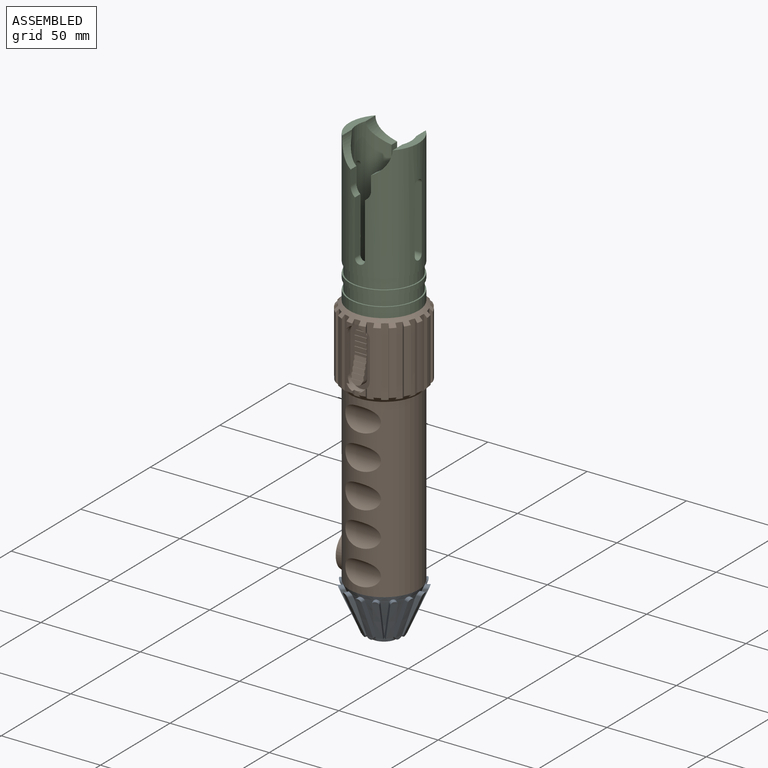
[diagram: assembled view]
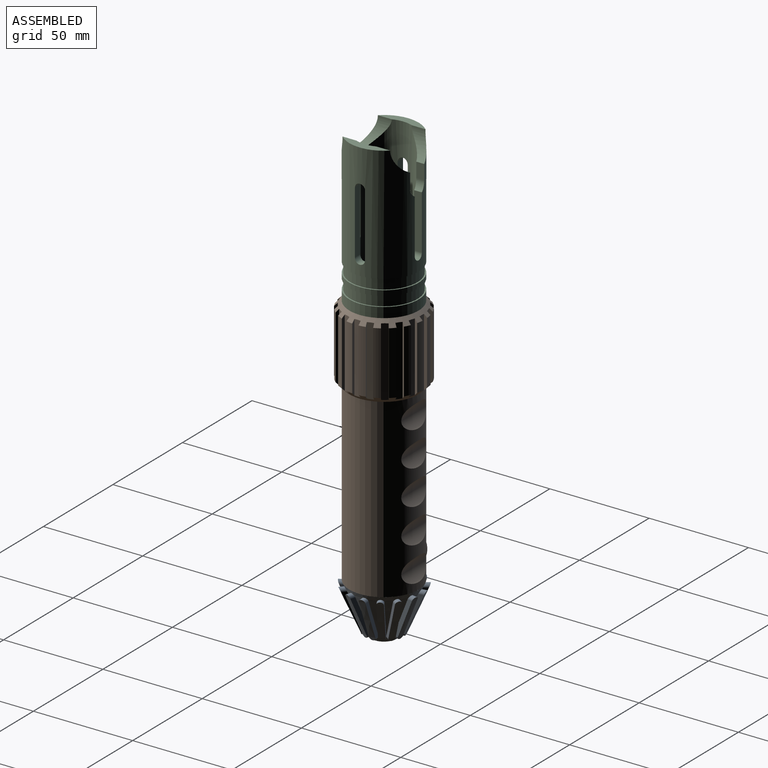
[diagram: assembled view, second angle]
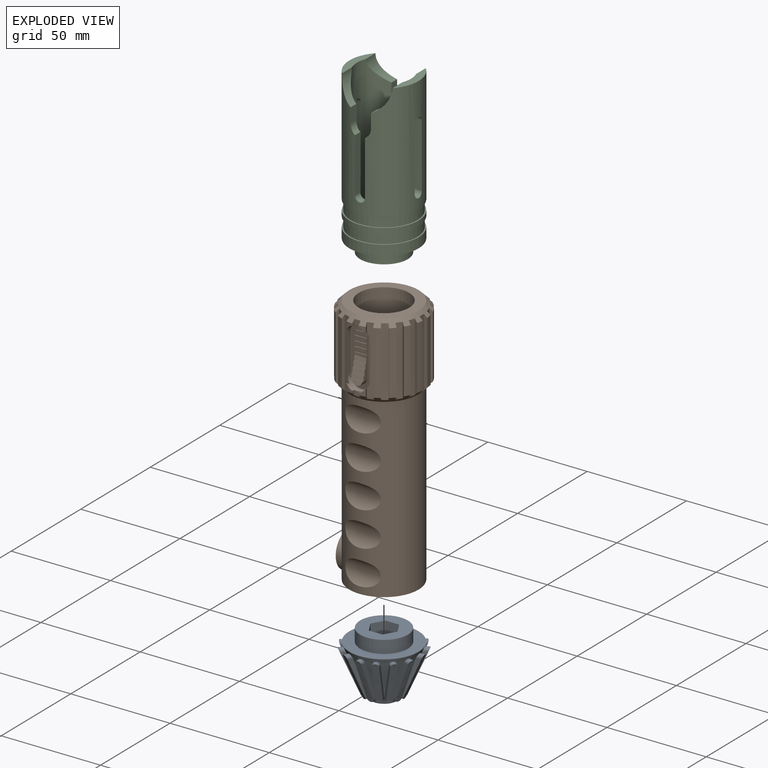
[diagram: exploded view]
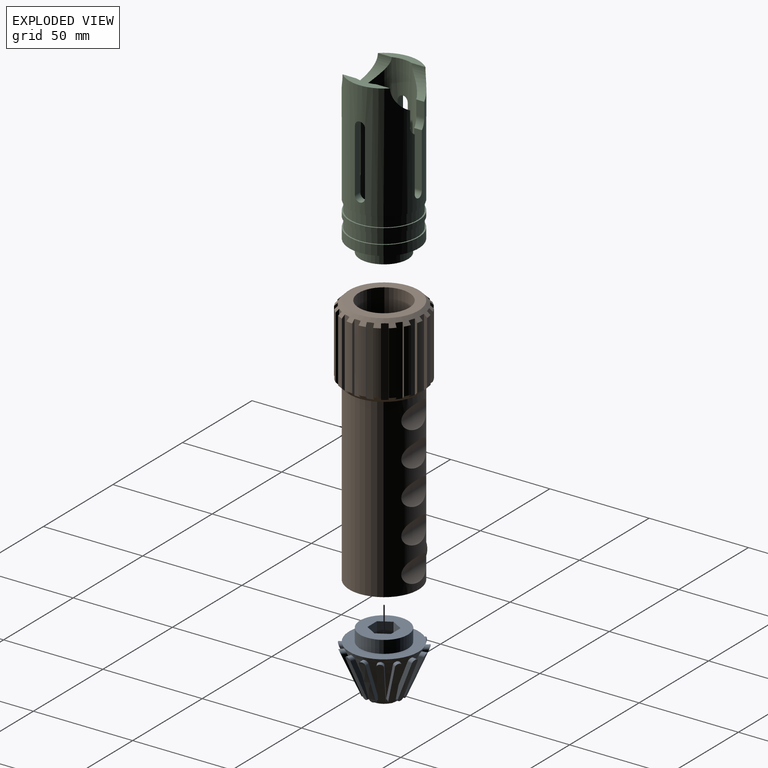
[diagram: exploded view, second angle]
ASSEMBLY  parts=3 mates=4
PART A: 87 faces, bbox 39.2x39x32.2 mm
  f0: plane 19.5x10.48mm, normal (-0.91,0.41,0), area 48.8mm2, adj f1,f3,f61,f79
  f1: cylinder r=1.59mm len=4.17mm, axis (0.41,0.91,0), area 12.8mm2, adj f0,f2,f61,f79
  f2: plane 19.5x10.48mm, normal (0.91,-0.41,0), area 48.8mm2, adj f1,f3,f61,f79
  f3: cylinder r=1.59mm len=4.32mm, axis (0.41,0.91,0), area 12.7mm2, adj f0,f2,f61,f79
  f4: plane 19.5x8.61mm, normal (-0.67,0.74,0), area 48.8mm2, adj f5,f7,f61,f78
  f5: cylinder r=1.59mm len=4.44mm, axis (0.74,0.67,0), area 12.8mm2, adj f4,f6,f61,f78
  f6: plane 19.5x8.61mm, normal (0.67,-0.74,0), area 48.8mm2, adj f5,f7,f61,f78
  f7: cylinder r=1.59mm len=4.59mm, axis (0.74,0.67,0), area 12.7mm2, adj f4,f6,f61,f78
  f8: plane 19.5x10.89mm, normal (-0.31,0.95,0), area 48.8mm2, adj f9,f11,f61,f77
  f9: cylinder r=1.59mm len=3.98mm, axis (0.95,0.31,0), area 12.8mm2, adj f8,f10,f61,f77
  f10: plane 19.5x10.89mm, normal (0.31,-0.95,0), area 48.8mm2, adj f9,f11,f61,f77
  f11: cylinder r=1.59mm len=4.13mm, axis (0.95,0.31,0), area 12.7mm2, adj f8,f10,f61,f77
  f12: plane 19.5x11.36mm, normal (0.1,0.99,0), area 48.8mm2, adj f13,f15,f61,f76
  f13: cylinder r=1.59mm len=3.48mm, axis (0.99,-0.1,0), area 12.2mm2, adj f12,f14,f61,f76
  f14: plane 19.43x11.29mm, normal (-0.1,-0.99,0), area 48.8mm2, adj f13,f15,f61,f76
  f15: cylinder r=1.59mm len=3.63mm, axis (0.99,-0.1,0), area 12.7mm2, adj f12,f14,f61,f76
  f16: plane 19.5x9.95mm, normal (0.5,0.87,0), area 48.8mm2, adj f17,f19,f61,f75
  f17: cylinder r=1.59mm len=4.31mm, axis (0.87,-0.5,0), area 12.8mm2, adj f16,f18,f61,f75
  f18: plane 19.5x9.95mm, normal (-0.5,-0.87,0), area 48.8mm2, adj f17,f19,f61,f75
  f19: cylinder r=1.59mm len=4.46mm, axis (0.87,-0.5,0), area 12.7mm2, adj f16,f18,f61,f75
  f20: plane 19.5x9.33mm, normal (0.81,0.59,0), area 48.8mm2, adj f21,f23,f61,f74
  f21: cylinder r=1.59mm len=4.4mm, axis (0.59,-0.81,0), area 12.8mm2, adj f20,f22,f61,f74
  f22: plane 19.5x9.33mm, normal (-0.81,-0.59,0), area 48.8mm2, adj f21,f23,f61,f74
  f23: cylinder r=1.59mm len=4.55mm, axis (0.59,-0.81,0), area 12.7mm2, adj f20,f22,f61,f74
  f24: plane 19.5x11.18mm, normal (0.98,0.21,0), area 48.8mm2, adj f25,f27,f61,f73
  f25: cylinder r=1.59mm len=3.75mm, axis (0.21,-0.98,0), area 12.8mm2, adj f24,f26,f61,f73
  f26: plane 19.5x11.18mm, normal (-0.98,-0.21,0), area 48.8mm2, adj f25,f27,f61,f73
  f27: cylinder r=1.59mm len=3.9mm, axis (0.21,-0.98,0), area 12.7mm2, adj f24,f26,f61,f73
  f28: plane 19.5x11.18mm, normal (0.98,-0.21,0), area 48.8mm2, adj f29,f31,f61,f72
  f29: cylinder r=1.59mm len=3.75mm, axis (-0.21,-0.98,0), area 12.8mm2, adj f28,f30,f61,f72
  f30: plane 19.5x11.18mm, normal (-0.98,0.21,0), area 48.8mm2, adj f29,f31,f61,f72
  f31: cylinder r=1.59mm len=3.9mm, axis (-0.21,-0.98,0), area 12.7mm2, adj f28,f30,f61,f72
  f32: plane 19.5x9.33mm, normal (0.81,-0.59,0), area 48.8mm2, adj f33,f35,f61,f71
  f33: cylinder r=1.59mm len=4.4mm, axis (-0.59,-0.81,0), area 12.8mm2, adj f32,f34,f61,f71
  f34: plane 19.5x9.33mm, normal (-0.81,0.59,0), area 48.8mm2, adj f33,f35,f61,f71
  f35: cylinder r=1.59mm len=4.55mm, axis (-0.59,-0.81,0), area 12.7mm2, adj f32,f34,f61,f71
  f36: plane 19.5x9.95mm, normal (0.5,-0.87,0), area 48.8mm2, adj f37,f39,f61,f70
  f37: cylinder r=1.59mm len=4.31mm, axis (-0.87,-0.5,0), area 12.8mm2, adj f36,f38,f61,f70
  f38: plane 19.5x9.95mm, normal (-0.5,0.87,0), area 48.8mm2, adj f37,f39,f61,f70
  f39: cylinder r=1.59mm len=4.46mm, axis (-0.87,-0.5,0), area 12.7mm2, adj f36,f38,f61,f70
  f40: plane 19.5x11.36mm, normal (0.1,-0.99,0), area 48.8mm2, adj f41,f43,f61,f69
  f41: cylinder r=1.59mm len=3.48mm, axis (-0.99,-0.1,0), area 12.8mm2, adj f40,f42,f61,f69
  f42: plane 19.5x11.36mm, normal (-0.1,0.99,0), area 48.8mm2, adj f41,f43,f61,f69
  f43: cylinder r=1.59mm len=3.63mm, axis (-0.99,-0.1,0), area 12.7mm2, adj f40,f42,f61,f69
  f44: plane 19.5x10.89mm, normal (-0.31,-0.95,0), area 48.8mm2, adj f45,f47,f61,f68
  f45: cylinder r=1.59mm len=3.98mm, axis (-0.95,0.31,0), area 12.8mm2, adj f44,f46,f61,f68
  f46: plane 19.5x10.89mm, normal (0.31,0.95,0), area 48.8mm2, adj f45,f47,f61,f68
  f47: cylinder r=1.59mm len=4.13mm, axis (-0.95,0.31,0), area 12.7mm2, adj f44,f46,f61,f68
  f48: plane 19.5x8.61mm, normal (-0.67,-0.74,0), area 48.8mm2, adj f49,f51,f61,f67
  f49: cylinder r=1.59mm len=4.44mm, axis (-0.74,0.67,0), area 12.8mm2, adj f48,f50,f61,f67
  f50: plane 19.5x8.61mm, normal (0.67,0.74,0), area 48.8mm2, adj f49,f51,f61,f67
  f51: cylinder r=1.59mm len=4.59mm, axis (-0.74,0.67,0), area 12.7mm2, adj f48,f50,f61,f67
  f52: plane 19.5x10.48mm, normal (-0.91,-0.41,0), area 48.8mm2, adj f53,f55,f61,f66
  f53: cylinder r=1.59mm len=4.17mm, axis (-0.41,0.91,0), area 12.8mm2, adj f52,f54,f61,f66
  f54: plane 19.5x10.48mm, normal (0.91,0.41,0), area 48.8mm2, adj f53,f55,f61,f66
  f55: cylinder r=1.59mm len=4.32mm, axis (-0.41,0.91,0), area 12.7mm2, adj f52,f54,f61,f66
  f56: plane 19.5x11.42mm, normal (-1,0,0), area 48.8mm2, adj f57,f59,f61,f65
  f57: cylinder r=1.59mm len=3.18mm, axis (0,1,0), area 12.8mm2, adj f56,f58,f61,f65
  f58: plane 19.5x11.42mm, normal (1,0,0), area 48.8mm2, adj f57,f59,f61,f65
  f59: cylinder r=1.59mm len=3.31mm, axis (0,1,0), area 12.7mm2, adj f56,f58,f61,f65
  f60: plane 12.7x12.7mm, normal (0,0,-1), area 126.7mm2, adj f61
  f61: cone r=17.46mm half-angle=23.6deg, axis (0,0,1), area 857mm2, adj f0,f1,f2,f3,f4,f5,f6,f7
  f62: plane 34.93x34.93mm, normal (0,0,1), area 500.7mm2, adj f61,f63
  f63: cylinder r=12.06mm len=24.13mm, axis (0,0,-1), area 481.4mm2, adj f62,f64
  f64: plane 24.13x24.13mm, normal (0,0,1), area 334.5mm2, adj f63,f80,f81,f82,f83,f84,f85
  f65: cone r=20mm half-angle=23.6deg, axis (0,0,1), area 78.9mm2, adj f56,f57,f58,f59
  f66: cone r=20mm half-angle=23.6deg, axis (0,0,1), area 78.9mm2, adj f52,f53,f54,f55
  f67: cone r=20mm half-angle=23.6deg, axis (0,0,1), area 78.9mm2, adj f48,f49,f50,f51
  f68: cone r=20mm half-angle=23.6deg, axis (0,0,1), area 78.9mm2, adj f44,f45,f46,f47
  f69: cone r=20mm half-angle=23.6deg, axis (0,0,1), area 78.9mm2, adj f40,f41,f42,f43
  f70: cone r=20mm half-angle=23.6deg, axis (0,0,1), area 78.9mm2, adj f36,f37,f38,f39
  f71: cone r=20mm half-angle=23.6deg, axis (0,0,1), area 78.9mm2, adj f32,f33,f34,f35
  f72: cone r=20mm half-angle=23.6deg, axis (0,0,1), area 78.9mm2, adj f28,f29,f30,f31
  f73: cone r=20mm half-angle=23.6deg, axis (0,0,1), area 78.9mm2, adj f24,f25,f26,f27
  f74: cone r=20mm half-angle=23.6deg, axis (0,0,1), area 78.9mm2, adj f20,f21,f22,f23
  f75: cone r=20mm half-angle=23.6deg, axis (0,0,1), area 78.9mm2, adj f16,f17,f18,f19
  f76: cone r=20mm half-angle=23.6deg, axis (0,0,1), area 78.9mm2, adj f12,f13,f14,f15
  f77: cone r=20mm half-angle=23.6deg, axis (0,0,1), area 78.9mm2, adj f8,f9,f10,f11
  f78: cone r=20mm half-angle=23.6deg, axis (0,0,1), area 78.9mm2, adj f4,f5,f6,f7
  f79: cone r=20mm half-angle=23.6deg, axis (0,0,1), area 78.9mm2, adj f0,f1,f2,f3
  f80: plane 6.35x5.95mm, normal (-0.87,-0.5,0), area 43.7mm2, adj f64,f81,f85,f86
  f81: plane 6.87x6.35mm, normal (0,-1,0), area 43.7mm2, adj f64,f80,f82,f86
  f82: plane 6.35x5.95mm, normal (0.87,-0.5,0), area 43.7mm2, adj f64,f81,f83,f86
  f83: plane 6.35x5.95mm, normal (0.87,0.5,0), area 43.7mm2, adj f64,f82,f84,f86
  f84: plane 6.87x6.35mm, normal (0,1,0), area 43.7mm2, adj f64,f83,f85,f86
  f85: plane 6.35x5.95mm, normal (-0.87,0.5,0), area 43.7mm2, adj f64,f80,f84,f86
  f86: plane 13.75x11.91mm, normal (0,0,1), area 122.8mm2, adj f80,f81,f82,f83,f84,f85
PART B: 172 faces, bbox 41.5x41.5x127.2 mm
  f0: cylinder r=3.97mm len=88.9mm, axis (0,0,-1), area 2216.8mm2, adj f154,f163
  f1: cylinder r=17.46mm len=88.9mm, axis (0,0,-1), area 7662.9mm2, adj f44,f46,f141,f142,f143,f144,f145,f146
  f2: plane 19.05x2.94mm, normal (-1,0,0), area 20.6mm2, adj f3,f4,f5,f6,f7,f9,f10,f11
  f3: torus R=9.53mm, axis (1,0,0), area 25.7mm2, adj f2,f8,f111,f112,f127,f128,f129,f131
  f4: plane 6.03x1.23mm, normal (0,-0.97,0.26), area 7.7mm2, adj f2,f9,f112,f138
  f5: plane 6.03x1.23mm, normal (0,-0.97,0.26), area 7.7mm2, adj f2,f112,f135,f139
  f6: plane 6.03x1.23mm, normal (0,-0.97,0.26), area 7.7mm2, adj f2,f112,f132,f136
  f7: plane 6.03x1.23mm, normal (0,-0.97,0.26), area 7.7mm2, adj f2,f112,f130,f133
  f8: plane 5.9x1.23mm, normal (0,-0.97,0.26), area 6.9mm2, adj f3,f127,f129
  f9: plane 6.03x1.27mm, normal (0,-1,0), area 7.7mm2, adj f2,f4,f112,f124
  f10: cylinder r=3.02mm len=6.03mm, axis (0,1,0), area 3.5mm2, adj f2,f14,f15,f112,f113,f114,f115,f116
  f11: plane 6.03x1.27mm, normal (0,-1,0), area 7.7mm2, adj f2,f112,f121,f125
  f12: plane 6.03x1.27mm, normal (0,-1,0), area 7.7mm2, adj f2,f112,f118,f122
  f13: plane 6.03x1.27mm, normal (0,-1,0), area 7.7mm2, adj f2,f112,f117,f119
  f14: plane 5.9x1.27mm, normal (0,-1,0), area 6.9mm2, adj f10,f114,f116
  f15: plane 30.16x11.11mm, normal (0,-1,0), area 165.2mm2, adj f2,f10,f107,f108,f109,f110,f111,f112
  f16: cylinder r=20.64mm len=3.64mm, axis (0,0,-1), area 6.6mm2, adj f22,f45,f105,f110
  f17: cylinder r=20.64mm len=3.64mm, axis (0,0,-1), area 6.6mm2, adj f21,f45,f101,f110
  f18: plane 35.11x3.21mm, normal (0.31,-0.95,0), area 81.3mm2, adj f19,f45,f46,f100,f101,f107,f109,f110
  f19: plane 5.24x1.54mm, normal (0.95,0.31,0), area 6.1mm2, adj f18,f26,f46,f109
  f20: plane 3.37x2.8mm, normal (0,-1,0), area 7.7mm2, adj f46,f103,f104,f109
  f21: plane 2.55x1.53mm, normal (-1,0,0), area 2.7mm2, adj f17,f45,f102,f110
  f22: plane 2.55x1.53mm, normal (1,0,0), area 2.7mm2, adj f16,f45,f102,f110
  f23: plane 35.11x3.21mm, normal (-0.31,-0.95,0), area 81.3mm2, adj f24,f45,f46,f105,f106,f108,f109,f110
  f24: plane 5.24x1.54mm, normal (-0.95,0.31,0), area 6.1mm2, adj f23,f25,f46,f109
  f25: cylinder r=20.64mm len=3.64mm, axis (0,0,-1), area 6.6mm2, adj f24,f46,f104,f109
  f26: cylinder r=20.64mm len=3.64mm, axis (0,0,-1), area 6.6mm2, adj f19,f46,f103,f109
  f27: cylinder r=20.64mm len=31.75mm, axis (0,0,-1), area 104.9mm2, adj f45,f46,f99,f100
  f28: cylinder r=20.64mm len=31.75mm, axis (0,0,-1), area 104.9mm2, adj f45,f46,f96,f98
  f29: cylinder r=20.64mm len=31.75mm, axis (0,0,-1), area 104.9mm2, adj f45,f46,f93,f95
  f30: cylinder r=20.64mm len=31.75mm, axis (0,0,-1), area 104.9mm2, adj f45,f46,f90,f92
  f31: cylinder r=20.64mm len=31.75mm, axis (0,0,-1), area 104.9mm2, adj f45,f46,f87,f89
  f32: cylinder r=20.64mm len=31.75mm, axis (0,0,-1), area 104.9mm2, adj f45,f46,f57,f86
  f33: cylinder r=20.64mm len=31.75mm, axis (0,0,-1), area 104.9mm2, adj f45,f46,f81,f83
  f34: cylinder r=20.64mm len=31.75mm, axis (0,0,-1), area 104.9mm2, adj f45,f46,f80,f106
  f35: cylinder r=20.64mm len=31.75mm, axis (0,0,-1), area 104.9mm2, adj f45,f46,f77,f84
  f36: cylinder r=20.64mm len=31.75mm, axis (0,0,-1), area 104.9mm2, adj f45,f46,f74,f78
  f37: cylinder r=20.64mm len=31.75mm, axis (0,0,-1), area 104.9mm2, adj f45,f46,f69,f71
  f38: cylinder r=20.64mm len=31.75mm, axis (0,0,-1), area 104.9mm2, adj f45,f46,f66,f68
  f39: cylinder r=20.64mm len=31.75mm, axis (0,0,-1), area 104.9mm2, adj f45,f46,f63,f65
  f40: cylinder r=20.64mm len=31.75mm, axis (0,0,-1), area 104.9mm2, adj f45,f46,f62,f75
  f41: cylinder r=20.64mm len=31.75mm, axis (0,0,-1), area 104.9mm2, adj f45,f46,f54,f59
  f42: cylinder r=20.64mm len=31.75mm, axis (0,0,-1), area 104.9mm2, adj f45,f46,f56,f60
  f43: cylinder r=20.64mm len=31.75mm, axis (0,0,-1), area 104.9mm2, adj f45,f46,f50,f53
  f44: plane 34.93x34.93mm, normal (0,0,-1), area 451.3mm2, adj f1,f153
  f45: cone r=17.46mm half-angle=45deg, axis (0,0,-1), area 400.4mm2, adj f16,f17,f18,f21,f22,f23,f27,f28
  f46: cone r=20.64mm half-angle=45deg, axis (0,0,1), area 400.4mm2, adj f1,f18,f19,f20,f23,f24,f25,f26
  f47: cylinder r=20.64mm len=31.75mm, axis (0,0,-1), area 104.9mm2, adj f45,f46,f51,f72
  f48: plane 34.93x34.93mm, normal (0,0,1), area 451.3mm2, adj f45,f164
  f49: plane 35.12x3.38mm, normal (0,1,0), area 110.7mm2, adj f45,f46,f50,f51
  f50: plane 34.8x1.53mm, normal (-1,0,0), area 50.8mm2, adj f43,f45,f46,f49
  f51: plane 34.8x1.53mm, normal (1,0,0), area 50.8mm2, adj f45,f46,f47,f49
  f52: plane 35.11x3.21mm, normal (0.31,0.95,0), area 110.7mm2, adj f45,f46,f53,f54
  f53: plane 34.8x1.46mm, normal (0.95,-0.31,0), area 50.8mm2, adj f43,f45,f46,f52
  f54: plane 34.8x1.46mm, normal (-0.95,0.31,0), area 50.8mm2, adj f41,f45,f46,f52
  f55: plane 35.11x2.76mm, normal (0.81,0.59,0), area 110.7mm2, adj f45,f46,f56,f57
  f56: plane 34.8x1.24mm, normal (0.59,-0.81,0), area 50.8mm2, adj f42,f45,f46,f55
  f57: plane 34.8x1.24mm, normal (-0.59,0.81,0), area 50.8mm2, adj f32,f45,f46,f55
  f58: plane 35.11x2.76mm, normal (0.59,0.81,0), area 110.7mm2, adj f45,f46,f59,f60
  f59: plane 34.8x1.24mm, normal (0.81,-0.59,0), area 50.8mm2, adj f41,f45,f46,f58
  f60: plane 34.8x1.24mm, normal (-0.81,0.59,0), area 50.8mm2, adj f42,f45,f46,f58
  f61: plane 35.11x3.21mm, normal (-0.95,0.31,0), area 110.7mm2, adj f45,f46,f62,f63
  f62: plane 34.8x1.46mm, normal (0.31,0.95,0), area 50.8mm2, adj f40,f45,f46,f61
  f63: plane 34.8x1.46mm, normal (-0.31,-0.95,0), area 50.8mm2, adj f39,f45,f46,f61
  f64: plane 35.11x2.76mm, normal (-0.81,0.59,0), area 110.7mm2, adj f45,f46,f65,f66
  f65: plane 34.8x1.24mm, normal (0.59,0.81,0), area 50.8mm2, adj f39,f45,f46,f64
  f66: plane 34.8x1.24mm, normal (-0.59,-0.81,0), area 50.8mm2, adj f38,f45,f46,f64
  f67: plane 35.11x2.76mm, normal (-0.59,0.81,0), area 110.7mm2, adj f45,f46,f68,f69
  f68: plane 34.8x1.24mm, normal (0.81,0.59,0), area 50.8mm2, adj f38,f45,f46,f67
  f69: plane 34.8x1.24mm, normal (-0.81,-0.59,0), area 50.8mm2, adj f37,f45,f46,f67
  f70: plane 35.11x3.21mm, normal (-0.31,0.95,0), area 110.7mm2, adj f45,f46,f71,f72
  f71: plane 34.8x1.46mm, normal (0.95,0.31,0), area 50.8mm2, adj f37,f45,f46,f70
  f72: plane 34.8x1.46mm, normal (-0.95,-0.31,0), area 50.8mm2, adj f45,f46,f47,f70
  f73: plane 35.12x3.37mm, normal (-1,0,0), area 110.7mm2, adj f45,f46,f74,f75
  f74: plane 34.8x1.53mm, normal (0,1,0), area 50.8mm2, adj f36,f45,f46,f73
  f75: plane 34.8x1.53mm, normal (0,-1,0), area 50.8mm2, adj f40,f45,f46,f73
  f76: plane 35.11x3.21mm, normal (-0.95,-0.31,0), area 110.7mm2, adj f45,f46,f77,f78
  f77: plane 34.8x1.46mm, normal (-0.31,0.95,0), area 50.8mm2, adj f35,f45,f46,f76
  f78: plane 34.8x1.46mm, normal (0.31,-0.95,0), area 50.8mm2, adj f36,f45,f46,f76
  f79: plane 35.11x2.76mm, normal (-0.59,-0.81,0), area 110.7mm2, adj f45,f46,f80,f81
  f80: plane 34.8x1.24mm, normal (-0.81,0.59,0), area 50.8mm2, adj f34,f45,f46,f79
  f81: plane 34.8x1.24mm, normal (0.81,-0.59,0), area 50.8mm2, adj f33,f45,f46,f79
  f82: plane 35.11x2.76mm, normal (-0.81,-0.59,0), area 110.7mm2, adj f45,f46,f83,f84
  f83: plane 34.8x1.24mm, normal (-0.59,0.81,0), area 50.8mm2, adj f33,f45,f46,f82
  f84: plane 34.8x1.24mm, normal (0.59,-0.81,0), area 50.8mm2, adj f35,f45,f46,f82
  f85: plane 35.11x3.21mm, normal (0.95,0.31,0), area 110.7mm2, adj f45,f46,f86,f87
  f86: plane 34.8x1.46mm, normal (0.31,-0.95,0), area 50.8mm2, adj f32,f45,f46,f85
  f87: plane 34.8x1.46mm, normal (-0.31,0.95,0), area 50.8mm2, adj f31,f45,f46,f85
  f88: plane 35.12x3.38mm, normal (1,0,0), area 110.7mm2, adj f45,f46,f89,f90
  f89: plane 34.8x1.53mm, normal (0,-1,0), area 50.8mm2, adj f31,f45,f46,f88
  f90: plane 34.8x1.53mm, normal (0,1,0), area 50.8mm2, adj f30,f45,f46,f88
  f91: plane 35.11x3.21mm, normal (0.95,-0.31,0), area 110.7mm2, adj f45,f46,f92,f93
  f92: plane 34.8x1.46mm, normal (-0.31,-0.95,0), area 50.8mm2, adj f30,f45,f46,f91
  f93: plane 34.8x1.46mm, normal (0.31,0.95,0), area 50.8mm2, adj f29,f45,f46,f91
  f94: plane 35.11x2.76mm, normal (0.81,-0.59,0), area 110.7mm2, adj f45,f46,f95,f96
  f95: plane 34.8x1.24mm, normal (-0.59,-0.81,0), area 50.8mm2, adj f29,f45,f46,f94
  f96: plane 34.8x1.24mm, normal (0.59,0.81,0), area 50.8mm2, adj f28,f45,f46,f94
  f97: plane 35.11x2.76mm, normal (0.59,-0.81,0), area 110.7mm2, adj f45,f46,f98,f99
  f98: plane 34.8x1.24mm, normal (-0.81,-0.59,0), area 50.8mm2, adj f28,f45,f46,f97
  f99: plane 34.8x1.24mm, normal (0.81,0.59,0), area 50.8mm2, adj f27,f45,f46,f97
  f100: plane 34.8x1.46mm, normal (-0.95,-0.31,0), area 50.8mm2, adj f18,f27,f45,f46
  f101: plane 5.24x1.54mm, normal (0.95,0.31,0), area 6.1mm2, adj f17,f18,f45,f110
  f102: plane 3.38x2.81mm, normal (0,-1,0), area 7.7mm2, adj f21,f22,f45,f110
  f103: plane 2.55x1.53mm, normal (-1,0,0), area 2.7mm2, adj f20,f26,f46,f109
  f104: plane 2.55x1.53mm, normal (1,0,0), area 2.7mm2, adj f20,f25,f46,f109
  f105: plane 5.24x1.54mm, normal (-0.95,0.31,0), area 6.1mm2, adj f16,f23,f45,f110
  f106: plane 34.8x1.46mm, normal (0.95,-0.31,0), area 50.8mm2, adj f23,f34,f45,f46
  f107: plane 19.05x1.94mm, normal (-1,0,0), area 37mm2, adj f15,f18,f109,f110
  f108: plane 19.05x1.94mm, normal (1,0,0), area 37mm2, adj f15,f23,f109,f110
  f109: cylinder r=5.56mm len=11.11mm, axis (0,1,0), area 54mm2, adj f15,f18,f19,f20,f23,f24,f25,f26
  f110: cylinder r=5.56mm len=11.11mm, axis (0,1,0), area 54mm2, adj f15,f16,f17,f18,f21,f22,f23,f101
  f111: cylinder r=3.02mm len=6.03mm, axis (0,1,0), area 6mm2, adj f2,f3,f15,f112
  f112: plane 19.05x2.94mm, normal (1,0,0), area 20.6mm2, adj f3,f4,f5,f6,f7,f9,f10,f11
  f113: plane 4.68x1.11mm, normal (0,-1,0), area 3.6mm2, adj f10,f114
  f114: plane 4.68x0.38mm, normal (0,0,1), area 1.8mm2, adj f10,f14,f113
  f115: plane 6.03x1.27mm, normal (0,-1,0), area 7.6mm2, adj f2,f10,f112,f116,f117
  f116: plane 5.9x0.38mm, normal (0,0,-1), area 2.2mm2, adj f10,f14,f115
  f117: plane 6.03x0.38mm, normal (0,0,1), area 2.3mm2, adj f2,f13,f112,f115
  f118: plane 6.03x0.38mm, normal (0,0,1), area 2.3mm2, adj f2,f12,f112,f120
  f119: plane 6.03x0.38mm, normal (0,0,-1), area 2.3mm2, adj f2,f13,f112,f120
  f120: plane 6.03x1.27mm, normal (0,-1,0), area 7.7mm2, adj f2,f112,f118,f119
  f121: plane 6.03x0.38mm, normal (0,0,1), area 2.3mm2, adj f2,f11,f112,f123
  f122: plane 6.03x0.38mm, normal (0,0,-1), area 2.3mm2, adj f2,f12,f112,f123
  f123: plane 6.03x1.27mm, normal (0,-1,0), area 7.7mm2, adj f2,f112,f121,f122
  f124: plane 6.03x0.38mm, normal (0,0,1), area 2.3mm2, adj f2,f9,f112,f126
  f125: plane 6.03x0.38mm, normal (0,0,-1), area 2.3mm2, adj f2,f11,f112,f126
  f126: plane 6.03x1.27mm, normal (0,-1,0), area 7.7mm2, adj f2,f112,f124,f125
  f127: plane 4.68x0.37mm, normal (0,-0.26,-0.97), area 1.8mm2, adj f3,f8,f128
  f128: plane 4.74x1.14mm, normal (0,-0.97,0.26), area 3.6mm2, adj f3,f127
  f129: plane 5.9x0.37mm, normal (0,0.26,0.97), area 2.2mm2, adj f3,f8,f131
  f130: plane 6.03x0.37mm, normal (0,-0.26,-0.97), area 2.3mm2, adj f2,f7,f112,f131
  f131: plane 6.04x1.23mm, normal (0,-0.97,0.26), area 7.6mm2, adj f2,f3,f112,f129,f130
  f132: plane 6.03x0.37mm, normal (0,-0.26,-0.97), area 2.3mm2, adj f2,f6,f112,f134
  f133: plane 6.03x0.37mm, normal (0,0.26,0.97), area 2.3mm2, adj f2,f7,f112,f134
  f134: plane 6.03x1.23mm, normal (0,-0.97,0.26), area 7.7mm2, adj f2,f112,f132,f133
  f135: plane 6.03x0.37mm, normal (0,-0.26,-0.97), area 2.3mm2, adj f2,f5,f112,f137
  f136: plane 6.03x0.37mm, normal (0,0.26,0.97), area 2.3mm2, adj f2,f6,f112,f137
  f137: plane 6.03x1.23mm, normal (0,-0.97,0.26), area 7.7mm2, adj f2,f112,f135,f136
  f138: plane 6.03x0.37mm, normal (0,-0.26,-0.97), area 2.3mm2, adj f2,f4,f112,f140
  f139: plane 6.03x0.37mm, normal (0,0.26,0.97), area 2.3mm2, adj f2,f5,f112,f140
  f140: plane 6.03x1.23mm, normal (0,-0.97,0.26), area 7.7mm2, adj f2,f112,f138,f139
  f141: cylinder r=8.47mm len=17.94mm, axis (1,0,0), area 188mm2, adj f1
  f142: cylinder r=8.47mm len=17.94mm, axis (1,0,0), area 188mm2, adj f1
  f143: cylinder r=8.47mm len=17.94mm, axis (1,0,0), area 188mm2, adj f1
  f144: cylinder r=8.47mm len=17.94mm, axis (1,0,0), area 188mm2, adj f1
  f145: cylinder r=8.47mm len=17.94mm, axis (1,0,0), area 188mm2, adj f1
  f146: cylinder r=8.47mm len=17.94mm, axis (1,0,0), area 188mm2, adj f1
  f147: cylinder r=8.47mm len=17.94mm, axis (1,0,0), area 188mm2, adj f1
  f148: cylinder r=8.47mm len=17.94mm, axis (1,0,0), area 188mm2, adj f1
  f149: cylinder r=8.47mm len=17.94mm, axis (1,0,0), area 188mm2, adj f1
  f150: cylinder r=8.47mm len=17.94mm, axis (1,0,0), area 188mm2, adj f1
  f151: cylinder r=9.38mm len=18.75mm, axis (1,0,0), area 97.4mm2, adj f1,f152
  f152: plane 18.75x18.75mm, normal (-1,0,0), area 262.9mm2, adj f151,f162
  f153: cylinder r=12.7mm len=25.4mm, axis (0,0,-1), area 1000.2mm2, adj f44,f161,f162
  f154: plane 13.75x11.91mm, normal (0,0,-1), area 73.3mm2, adj f0,f155,f156,f157,f158,f159,f160
  f155: plane 6.35x5.95mm, normal (-0.5,-0.87,0), area 43.7mm2, adj f154,f156,f160,f161
  f156: plane 6.35x5.95mm, normal (0.5,-0.87,0), area 43.7mm2, adj f154,f155,f157,f161
  f157: plane 6.87x6.35mm, normal (1,0,0), area 43.7mm2, adj f154,f156,f158,f161
  f158: plane 6.35x5.95mm, normal (0.5,0.87,0), area 43.7mm2, adj f154,f157,f159,f161
  f159: plane 6.35x5.95mm, normal (-0.5,0.87,0), area 43.7mm2, adj f154,f158,f160,f161
  f160: plane 6.87x6.35mm, normal (-1,0,0), area 43.7mm2, adj f154,f155,f159,f161
  f161: plane 25.4x25.4mm, normal (0,0,-1), area 383.9mm2, adj f153,f155,f156,f157,f158,f159,f160
  f162: cylinder r=2.05mm len=5.08mm, axis (-1,0,0), area 65.4mm2, adj f152,f153
  f163: plane 13.75x11.91mm, normal (0,0,1), area 73.3mm2, adj f0,f165,f166,f167,f168,f169,f170
  f164: cylinder r=12.7mm len=25.4mm, axis (0,0,1), area 1013.4mm2, adj f48,f171
  f165: plane 6.87x6.35mm, normal (-1,0,0), area 43.7mm2, adj f163,f166,f170,f171
  f166: plane 6.35x5.95mm, normal (-0.5,0.87,0), area 43.7mm2, adj f163,f165,f167,f171
  f167: plane 6.35x5.95mm, normal (0.5,0.87,0), area 43.7mm2, adj f163,f166,f168,f171
  f168: plane 6.87x6.35mm, normal (1,0,0), area 43.7mm2, adj f163,f167,f169,f171
  f169: plane 6.35x5.95mm, normal (0.5,-0.87,0), area 43.7mm2, adj f163,f168,f170,f171
  f170: plane 6.35x5.95mm, normal (-0.5,-0.87,0), area 43.7mm2, adj f163,f165,f169,f171
  f171: plane 25.4x25.4mm, normal (0,0,1), area 383.9mm2, adj f164,f165,f166,f167,f168,f169,f170
PART C: 43 faces, bbox 34.9x34.9x82.6 mm
  f0: cylinder r=17.46mm len=58.42mm, axis (0,0,-1), area 4981.2mm2, adj f2,f4,f5,f16,f17,f18,f19,f20
  f1: cylinder r=13.65mm len=73.03mm, axis (0,0,-1), area 4782.6mm2, adj f2,f5,f6,f16,f17,f18,f19,f20
  f2: plane 23.97x4.76mm, normal (0,0,1), area 72.1mm2, adj f0,f1,f16,f32
  f3: cylinder r=16.83mm len=33.66mm, axis (0,0,-1), area 537.1mm2, adj f4,f15
  f4: plane 34.93x34.93mm, normal (0,0,-1), area 68.4mm2, adj f0,f3
  f5: plane 23.97x4.76mm, normal (0,0,1), area 72.1mm2, adj f0,f1,f24,f33
  f6: plane 27.31x27.31mm, normal (0,0,1), area 536.1mm2, adj f1,f42
  f7: plane 24.13x24.13mm, normal (0,0,-1), area 407.8mm2, adj f8,f42
  f8: cylinder r=12.06mm len=24.13mm, axis (0,0,-1), area 481.4mm2, adj f7,f9
  f9: plane 34.93x34.93mm, normal (0,0,-1), area 500.7mm2, adj f8,f10
  f10: cylinder r=17.46mm len=34.93mm, axis (0,0,-1), area 557.4mm2, adj f9,f11
  f11: plane 34.93x34.93mm, normal (0,0,1), area 68.4mm2, adj f10,f12
  f12: cylinder r=16.83mm len=33.66mm, axis (0,0,-1), area 537.1mm2, adj f11,f13
  f13: plane 34.93x34.93mm, normal (0,0,-1), area 68.4mm2, adj f12,f14
  f14: cylinder r=17.46mm len=34.93mm, axis (0,0,-1), area 278.7mm2, adj f13,f15
  f15: plane 34.93x34.93mm, normal (0,0,1), area 68.4mm2, adj f3,f14
  f16: cylinder r=12.7mm len=11.7mm, axis (0,-1,0), area 79.7mm2, adj f0,f1,f2,f17
  f17: plane 7.41x4.04mm, normal (-1,0,0), area 29.9mm2, adj f0,f1,f16,f18
  f18: cylinder r=5.08mm len=4.6mm, axis (0,-1,0), area 21.1mm2, adj f0,f1,f17,f19
  f19: plane 27.35x3.86mm, normal (-1,0,0), area 105.6mm2, adj f0,f1,f18,f20
  f20: cylinder r=2.54mm len=5.08mm, axis (0,-1,0), area 30.6mm2, adj f0,f1,f19,f21
  f21: plane 27.35x3.86mm, normal (1,0,0), area 105.6mm2, adj f0,f1,f20,f22
  f22: cylinder r=5.08mm len=4.6mm, axis (0,-1,0), area 21.1mm2, adj f0,f1,f21,f23
  f23: plane 7.41x4.04mm, normal (1,0,0), area 29.9mm2, adj f0,f1,f22,f24
  f24: cylinder r=12.7mm len=11.7mm, axis (0,-1,0), area 79.7mm2, adj f0,f1,f5,f23
  f25: plane 7.41x4.04mm, normal (1,0,0), area 29.9mm2, adj f0,f1,f26,f33
  f26: cylinder r=5.08mm len=4.6mm, axis (0,-1,0), area 21.1mm2, adj f0,f1,f25,f27
  f27: plane 27.35x3.86mm, normal (1,0,0), area 105.6mm2, adj f0,f1,f26,f28
  f28: cylinder r=2.54mm len=5.08mm, axis (0,-1,0), area 30.6mm2, adj f0,f1,f27,f29
  f29: plane 27.35x3.86mm, normal (-1,0,0), area 105.6mm2, adj f0,f1,f28,f30
  f30: cylinder r=5.08mm len=4.6mm, axis (0,-1,0), area 21.1mm2, adj f0,f1,f29,f31
  f31: plane 7.41x4.04mm, normal (-1,0,0), area 29.9mm2, adj f0,f1,f30,f32
  f32: cylinder r=12.7mm len=11.7mm, axis (0,-1,0), area 79.7mm2, adj f0,f1,f2,f31
  f33: cylinder r=12.7mm len=11.7mm, axis (0,-1,0), area 79.7mm2, adj f0,f1,f5,f25
  f34: cylinder r=2.54mm len=5.08mm, axis (1,0,0), area 30.6mm2, adj f0,f1,f35,f37
  f35: plane 31.75x3.86mm, normal (0,-1,0), area 122.6mm2, adj f0,f1,f34,f36
  f36: cylinder r=2.54mm len=5.08mm, axis (1,0,0), area 30.6mm2, adj f0,f1,f35,f37
  f37: plane 31.75x3.86mm, normal (0,1,0), area 122.6mm2, adj f0,f1,f34,f36
  f38: plane 31.75x3.86mm, normal (0,1,0), area 122.6mm2, adj f0,f1,f39,f41
  f39: cylinder r=2.54mm len=5.08mm, axis (1,0,0), area 30.6mm2, adj f0,f1,f38,f40
  f40: plane 31.75x3.86mm, normal (0,-1,0), area 122.6mm2, adj f0,f1,f39,f41
  f41: cylinder r=2.54mm len=5.08mm, axis (1,0,0), area 30.6mm2, adj f0,f1,f38,f40
  f42: cylinder r=3.97mm len=9.53mm, axis (0,0,-1), area 237.5mm2, adj f6,f7
PLACE A t=(-37.81,-34.9,-31.66)mm
PLACE B t=(-37.81,-34.9,-6.26)mm
PLACE C t=(-37.81,-34.9,114.39)mm
MATE cylindrical B.f153 <-> A.f61  axis (0,0,-1) through (-37.81,-34.9,-6.26)mm
MATE planar A.f61 <-> B.f1  axis (0,0,1) through (-37.81,-34.9,-6.26)mm
MATE planar B.f153 <-> C.f0  axis (0,0,1) through (-37.81,-34.9,120.74)mm
MATE cylindrical C.f0 <-> B.f164  axis (0,0,-1) through (-37.81,-34.9,117.57)mm
